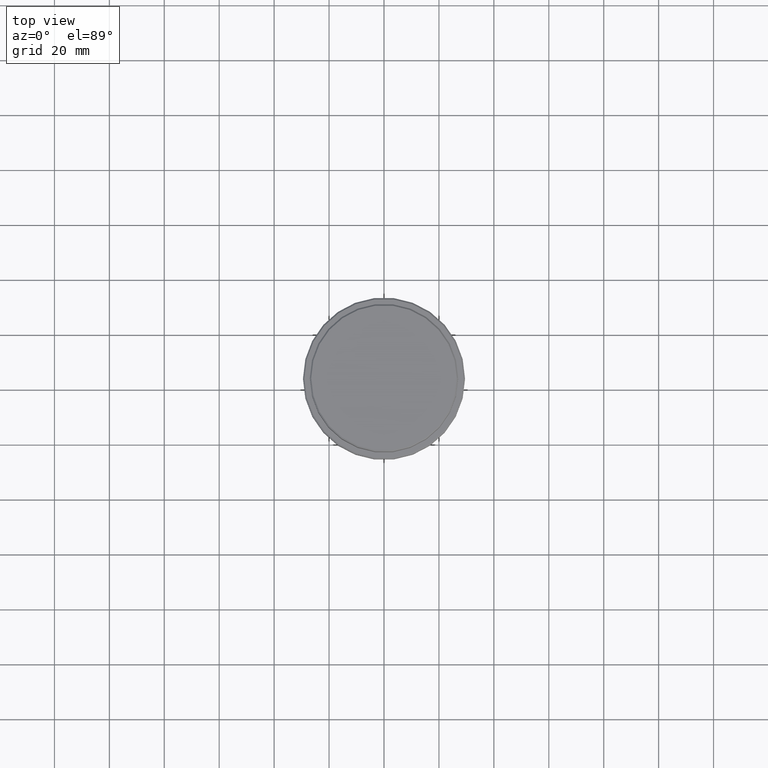
[diagram: clean part render]
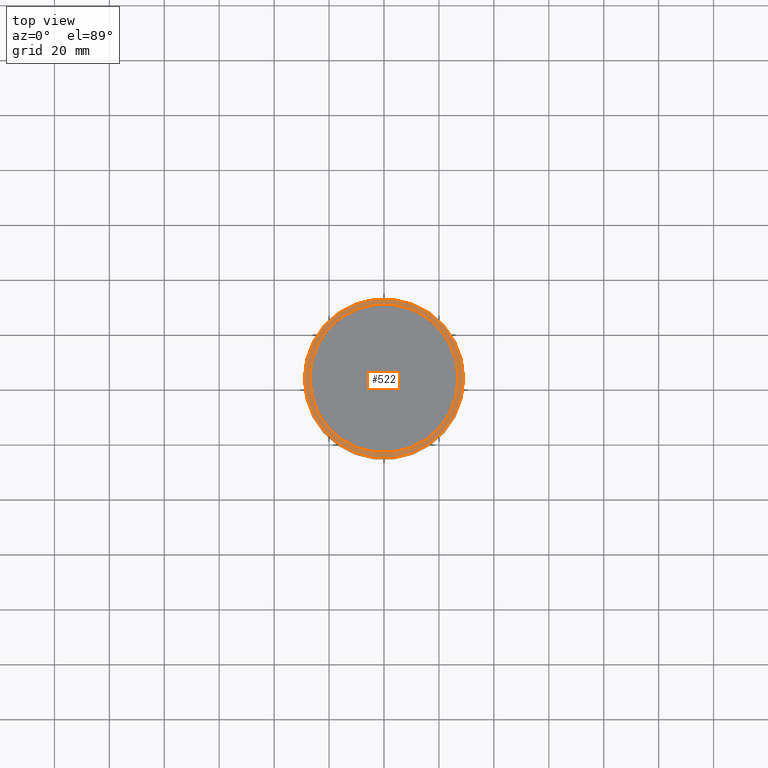
[diagram: same view with one face highlighted and labeled with its STEP entity id]
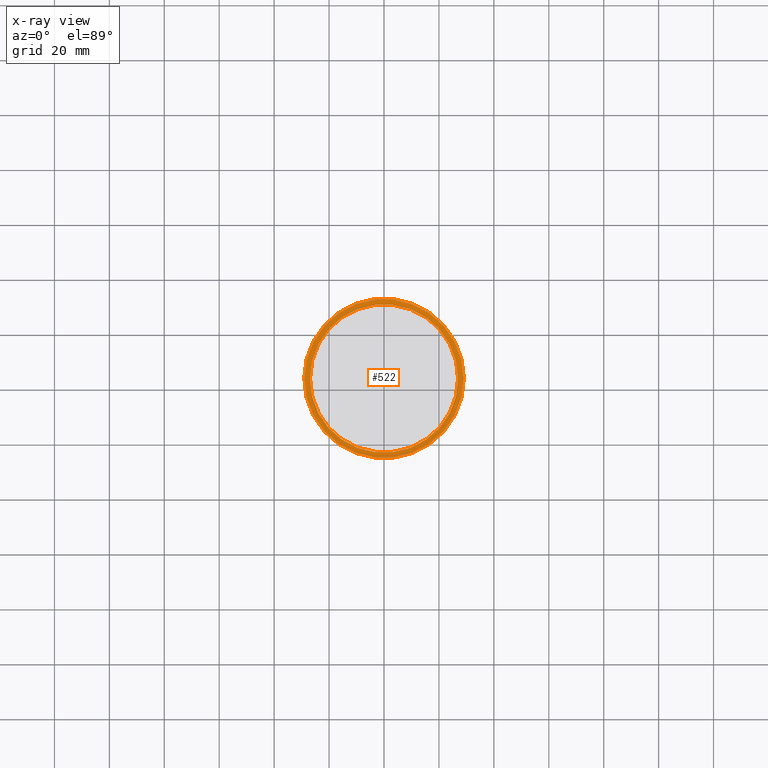
[diagram: x-ray of the same camera — body ghosted, the highlighted face saturated]
A machine part, top view. The second image highlights one B-rep face of the part: STEP entity #522.
The next image is the same camera in x-ray: the body ghosted, the highlighted face saturated — about 0% of this face is hidden behind the body in this view.
In plain terms, the highlighted planar face has unit normal (0, -0, 1).
Its self-contained STEP definition (entity closure, byte-faithful):
#4 = AXIS2_PLACEMENT_3D ( 'NONE', #905, #1310, #762 ) ;
#6 = ORIENTED_EDGE ( 'NONE', *, *, #967, .T. ) ;
#9 = CIRCLE ( 'NONE', #378, 26.99999999999999645 ) ;
#26 = EDGE_CURVE ( 'NONE', #1308, #1405, #976, .T. ) ;
#50 = AXIS2_PLACEMENT_3D ( 'NONE', #897, #336, #763 ) ;
#74 = AXIS2_PLACEMENT_3D ( 'NONE', #463, #889, #565 ) ;
#127 = DIRECTION ( 'NONE',  ( 1.000000000000000000, 0.000000000000000000, 0.000000000000000000 ) ) ;
#180 = ORIENTED_EDGE ( 'NONE', *, *, #26, .T. ) ;
#236 = FACE_BOUND ( 'NONE', #753, .T. ) ;
#248 = CARTESIAN_POINT ( 'NONE',  ( 0.000000000000000000, 0.000000000000000000, -12.00000000000000355 ) ) ;
#335 = CARTESIAN_POINT ( 'NONE',  ( -26.99999999999999645, 3.306546357697853339E-15, -12.00000000000000355 ) ) ;
#336 = DIRECTION ( 'NONE',  ( -0.000000000000000000, -0.000000000000000000, 1.000000000000000000 ) ) ;
#345 = PLANE ( 'NONE',  #74 ) ;
#374 = CIRCLE ( 'NONE', #1400, 26.99999999999999645 ) ;
#378 = AXIS2_PLACEMENT_3D ( 'NONE', #248, #1052, #931 ) ;
#423 = CIRCLE ( 'NONE', #4, 28.99999999999999645 ) ;
#463 = CARTESIAN_POINT ( 'NONE',  ( 0.000000000000000000, 26.49999999999999645, -12.00000000000000355 ) ) ;
#522 = ADVANCED_FACE ( 'NONE', ( #669, #236 ), #345, .T. ) ;
#542 = CARTESIAN_POINT ( 'NONE',  ( 28.99999999999999645, 3.582091887506007817E-15, -12.00000000000000355 ) ) ;
#565 = DIRECTION ( 'NONE',  ( 1.000000000000000000, 0.000000000000000000, 0.000000000000000000 ) ) ;
#608 = EDGE_CURVE ( 'NONE', #903, #1078, #9, .T. ) ;
#669 = FACE_OUTER_BOUND ( 'NONE', #839, .T. ) ;
#753 = EDGE_LOOP ( 'NONE', ( #1344, #1151 ) ) ;
#762 = DIRECTION ( 'NONE',  ( 1.000000000000000000, 0.000000000000000000, 0.000000000000000000 ) ) ;
#763 = DIRECTION ( 'NONE',  ( 1.000000000000000000, 0.000000000000000000, 0.000000000000000000 ) ) ;
#839 = EDGE_LOOP ( 'NONE', ( #6, #180 ) ) ;
#871 = CARTESIAN_POINT ( 'NONE',  ( 0.000000000000000000, 0.000000000000000000, -12.00000000000000355 ) ) ;
#889 = DIRECTION ( 'NONE',  ( 0.000000000000000000, -0.000000000000000000, 1.000000000000000000 ) ) ;
#897 = CARTESIAN_POINT ( 'NONE',  ( 0.000000000000000000, 0.000000000000000000, -12.00000000000000355 ) ) ;
#903 = VERTEX_POINT ( 'NONE', #335 ) ;
#905 = CARTESIAN_POINT ( 'NONE',  ( 0.000000000000000000, 0.000000000000000000, -12.00000000000000355 ) ) ;
#931 = DIRECTION ( 'NONE',  ( 1.000000000000000000, 0.000000000000000000, 0.000000000000000000 ) ) ;
#967 = EDGE_CURVE ( 'NONE', #1405, #1308, #423, .T. ) ;
#976 = CIRCLE ( 'NONE', #50, 28.99999999999999645 ) ;
#981 = EDGE_CURVE ( 'NONE', #1078, #903, #374, .T. ) ;
#1052 = DIRECTION ( 'NONE',  ( 0.000000000000000000, 0.000000000000000000, -1.000000000000000000 ) ) ;
#1078 = VERTEX_POINT ( 'NONE', #1235 ) ;
#1111 = CARTESIAN_POINT ( 'NONE',  ( -28.99999999999999645, 0.000000000000000000, -12.00000000000000355 ) ) ;
#1151 = ORIENTED_EDGE ( 'NONE', *, *, #608, .T. ) ;
#1235 = CARTESIAN_POINT ( 'NONE',  ( 26.99999999999999645, 0.000000000000000000, -12.00000000000000355 ) ) ;
#1303 = DIRECTION ( 'NONE',  ( 0.000000000000000000, 0.000000000000000000, -1.000000000000000000 ) ) ;
#1308 = VERTEX_POINT ( 'NONE', #542 ) ;
#1310 = DIRECTION ( 'NONE',  ( -0.000000000000000000, -0.000000000000000000, 1.000000000000000000 ) ) ;
#1344 = ORIENTED_EDGE ( 'NONE', *, *, #981, .T. ) ;
#1400 = AXIS2_PLACEMENT_3D ( 'NONE', #871, #1303, #127 ) ;
#1405 = VERTEX_POINT ( 'NONE', #1111 ) ;